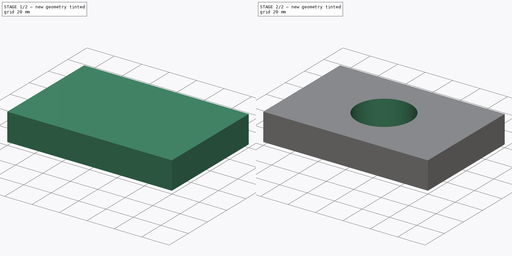
[diagram: build sequence overview — one tinted view per stage of 2, left to right]
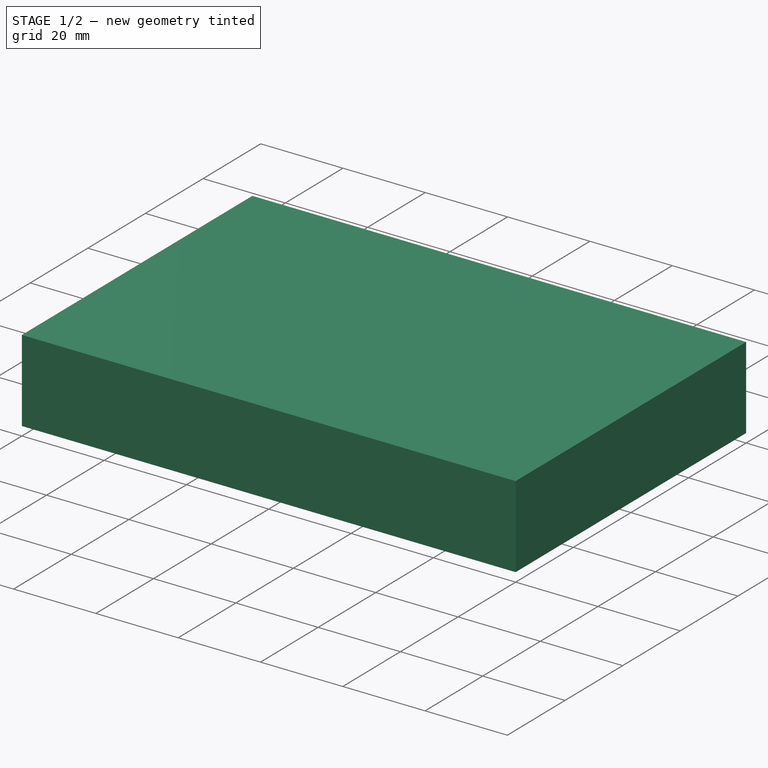
[diagram: stage 1 of 2 — iso view after this stage's code; geometry added in this stage tinted green]
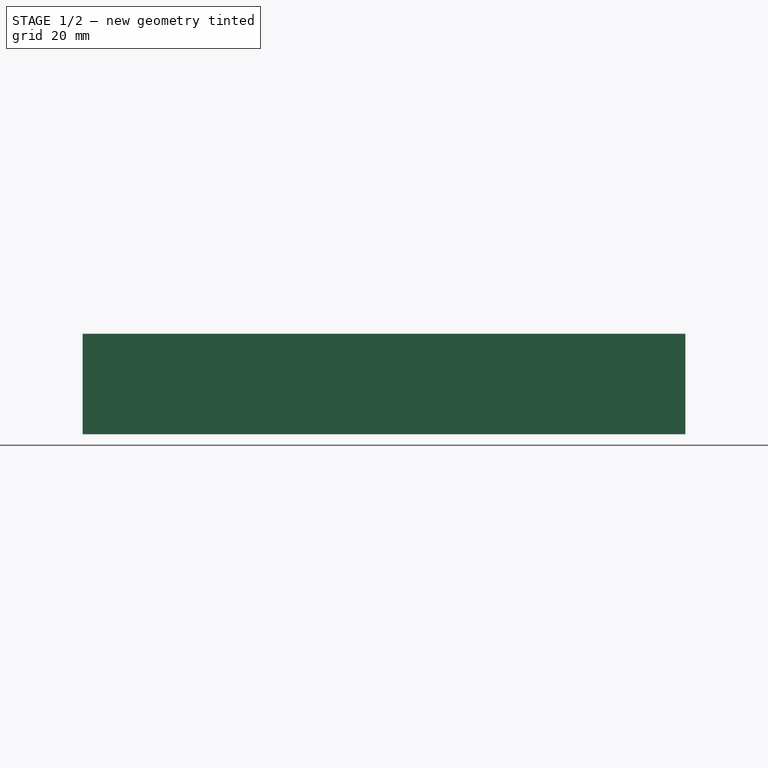
[diagram: stage 1 of 2 — front view after this stage's code; geometry added in this stage tinted green]
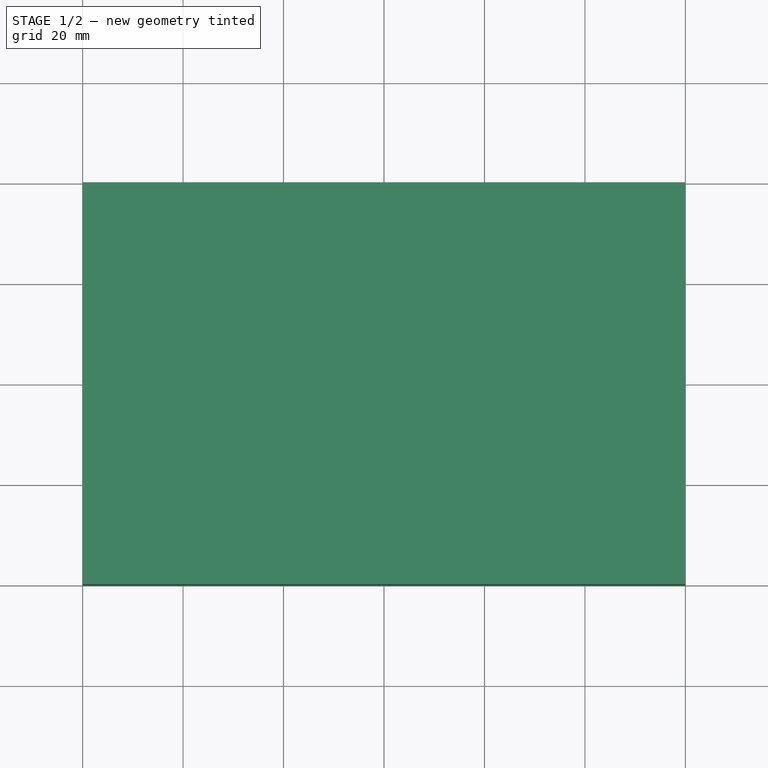
[diagram: stage 1 of 2 — top view after this stage's code; geometry added in this stage tinted green]
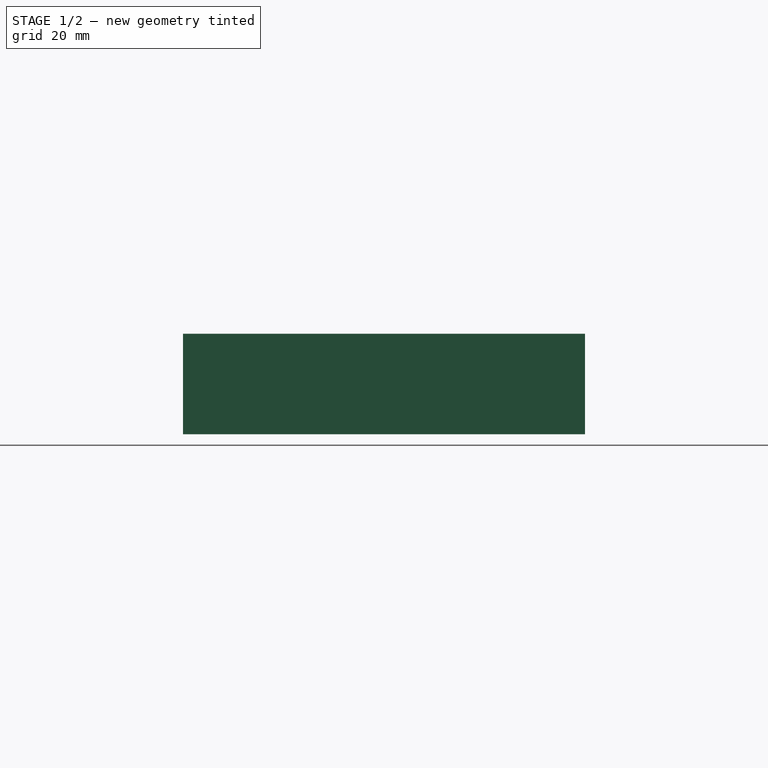
[diagram: stage 1 of 2 — right view after this stage's code; geometry added in this stage tinted green]
FCSTD DOCUMENT  (FreeCAD 0.18R16146 (Git))
Label: ex
License: All rights reserved
LicenseURL: http://en.wikipedia.org/wiki/All_rights_reserved
objects: Drawing::FeatureViewPart×7, Drawing::FeatureViewPython×4, Sketcher::SketchObject×2, PartDesign::Pad×1, PartDesign::Pocket×1, PartDesign::Body×1, Drawing::FeaturePage×1
note: 7 computed .brp shape members not serialized (recipe doc carries the construction recipe); baked Part::Feature solids carry a one-line shape summary decoded from their .brp

FEATURE [Sketcher::SketchObject] Sketch
  MapMode = 5
  Support = -> [XY_Plane]
  sketch-geometry (4):
    g0: LineSegment StartX=-60 StartY=40 StartZ=0 EndX=60 EndY=40 EndZ=0
    g1: LineSegment StartX=60 StartY=40 StartZ=0 EndX=60 EndY=-40 EndZ=0
    g2: LineSegment StartX=60 StartY=-40 StartZ=0 EndX=-60 EndY=-40 EndZ=0
    g3: LineSegment StartX=-60 StartY=-40 StartZ=0 EndX=-60 EndY=40 EndZ=0
  constraints (12):
    c: Coincident(g0,g1)
    c: Coincident(g1,g2)
    c: Coincident(g2,g3)
    c: Coincident(g3,g0)
    c: Horizontal(g0)
    c: Horizontal(g2)
    c: Vertical(g1)
    c: Vertical(g3)
    c: DistanceX(g0,g0) = 120
    c: DistanceY(g1,g1) = 80
    c: DistanceX(g0,g-1) = 60
    c: DistanceY(g-1,g0) = 40
FEATURE [PartDesign::Pad] Pad  label="사각형"
  Length = 20
  Length2 = 100
  Profile = -> Sketch
  Type = 0
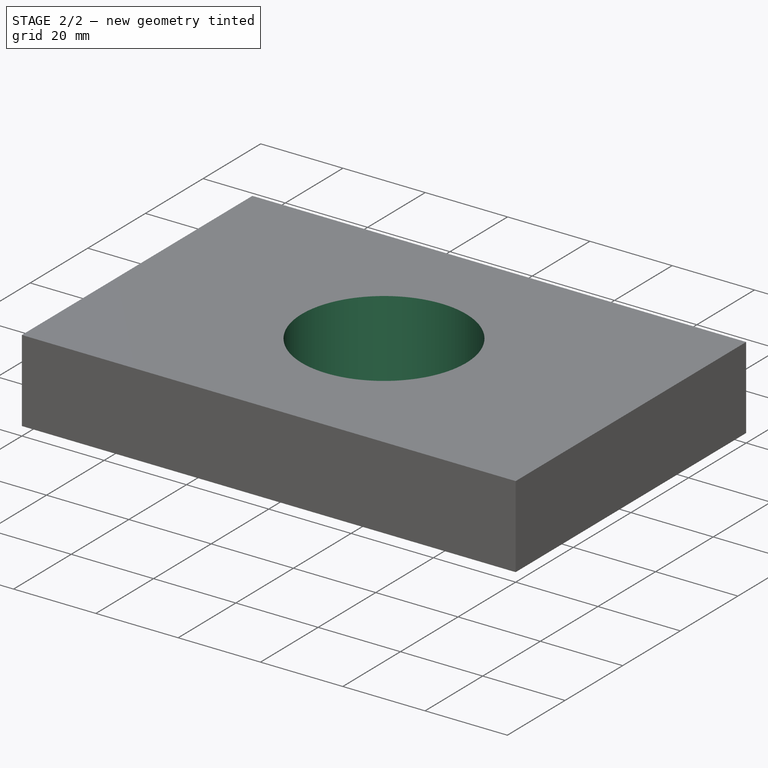
[diagram: stage 2 of 2 — iso view after this stage's code; geometry added in this stage tinted green]
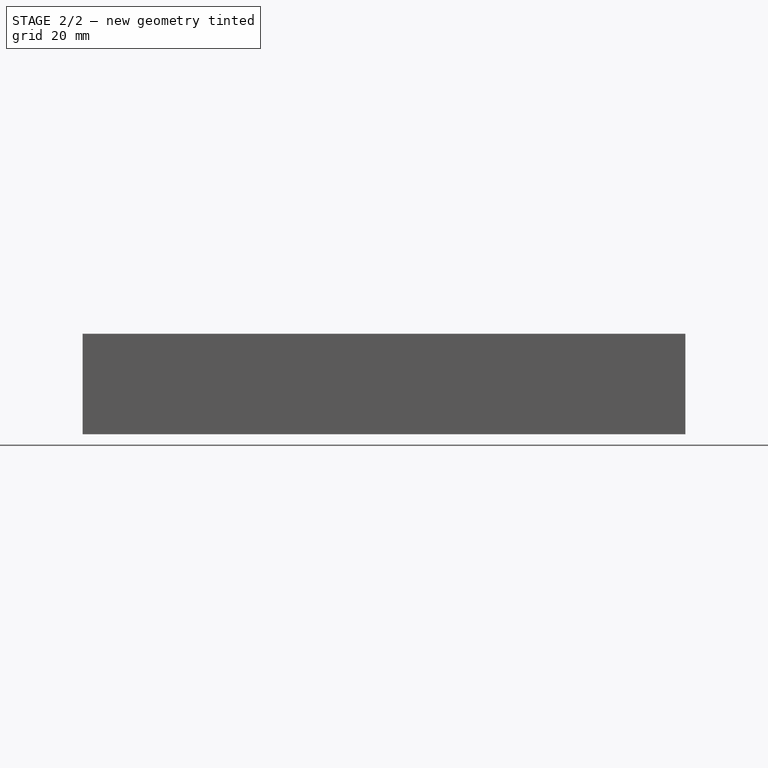
[diagram: stage 2 of 2 — front view after this stage's code; geometry added in this stage tinted green]
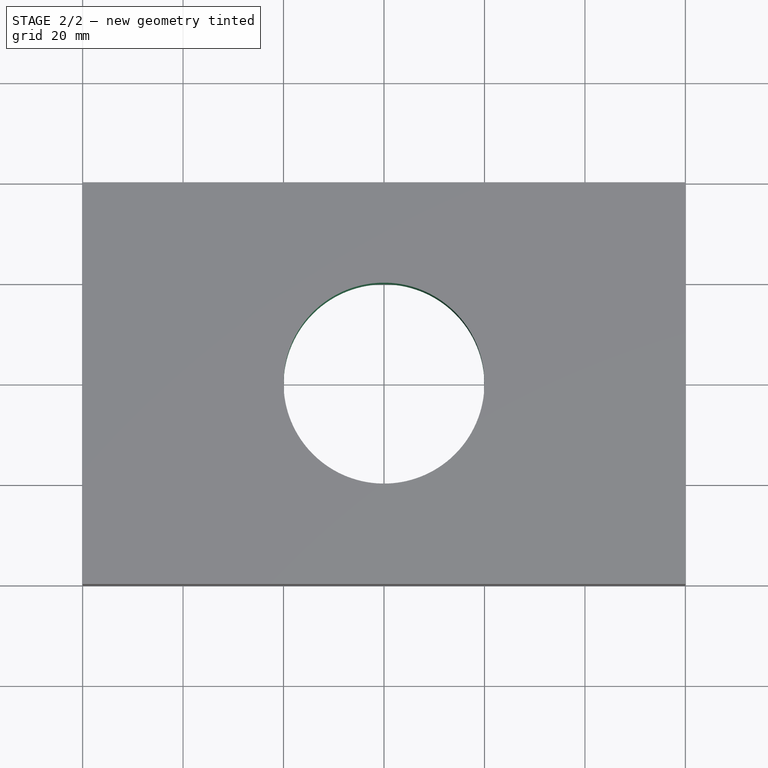
[diagram: stage 2 of 2 — top view after this stage's code; geometry added in this stage tinted green]
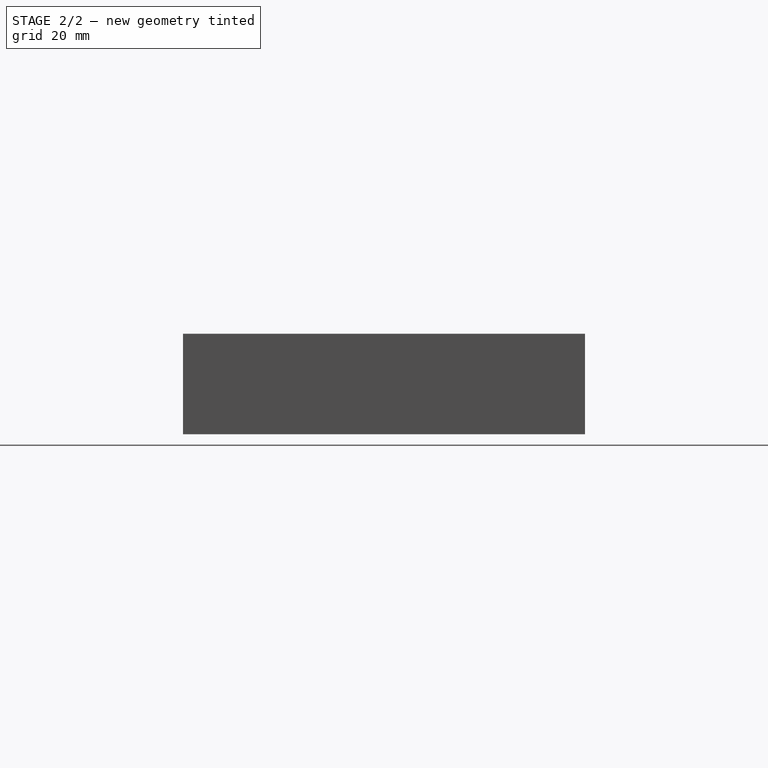
[diagram: stage 2 of 2 — right view after this stage's code; geometry added in this stage tinted green]
FEATURE [Sketcher::SketchObject] Sketch001
  MapMode = 5
  Placement = pos=(0,0,20) rot=(0,0,1;0rad)
  Support = -> [Pad]
  sketch-geometry (1):
    g0: Circle CenterX=0 CenterY=0 CenterZ=0 NormalX=0 NormalY=0 NormalZ=1 AngleXU=0 Radius=20
  constraints (2):
    c: Coincident(g0,g-1)
    c: Radius(g0) = 20
FEATURE [PartDesign::Pocket] Pocket  label="원"
  BaseFeature = -> Pad
  Length = 20
  Length2 = 100
  Profile = -> Sketch001
  Type = 0
FEATURE [PartDesign::Body] Body
  Group = -> [Sketch,Pad,Sketch001,Pocket]
  Origin = -> Origin
  Tip = -> Pocket
FEATURE [Drawing::FeatureViewPart] Ortho  label="Ortho_0_0"
  Direction = (1,0,0)
  HiddenWidth = 0.15
  LineWidth = 0.35
  Rotation = -90
  Scale = 0.75
  ShowHiddenLines = false
  ShowSmoothLines = false
  Source = -> Pocket
  Tolerance = 0.05
  ViewResult = <g id="Ortho_0_0"\n   transform="rotate(-90,210,202.75) translate(210,202.75) scale(0.75,0.75)"\n  >\n<g   fill="none"\n   stroke="rgb(0, 0, 0)"\n   stroke-linecap="butt"\n   stroke-linejoin="miter"\n   stroke-width="0.466667"\n   transform="scale(1,-1)"\n  >\n<path id= "1" d=" M 0 -40 L 20 -40 " />\n<path id= "2" d=" M 0 40 L 20 40 " />\n<path id= "3" d=" M 0 -40 L 0 40 " />\n<path id= "4" d=" M 20 -40 L 20 40 " />\n</g>\n</g>
  Visible = true
  X = 210
  Y = 202.75
FEATURE [Drawing::FeatureViewPart] Ortho006  label="Ortho_-1_1"
  Direction = (0.57735,-0.57735,0.57735)
  HiddenWidth = 0.15
  LineWidth = 0.35
  Rotation = 60
  Scale = 0.75
  ShowHiddenLines = false
  ShowSmoothLines = false
  Source = -> Pocket
  Tolerance = 0.05
  ViewResult = <g id="Ortho_-1_1"\n   transform="rotate(60,95,124.624) translate(95,124.624) scale(0.75,0.75)"\n  >\n<g   fill="none"\n   stroke="rgb(0, 0, 0)"\n   stroke-linecap="butt"\n   stroke-linejoin="miter"\n   stroke-width="0.466667"\n   transform="scale(1,-1)"\n  >\n<path id= "1" d=" M 42.4264 57.1548 L 28.2843 65.3197 " />\n<path id= "2" d=" M -56.5685 16.3299 L 28.2843 65.3197 " />\n<path id= "3" d=" M -42.4264 -57.1548 L -56.5685 -48.9898 " />\n<path id= "4" d=" M -56.5685 -48.9898 L -56.5685 16.3299 " />\n<path id= "5" d=" M 42.4264 -8.16497 L 28.2843 -5.32907e-15 " />\n<path id= "6" d=" M 42.4264 57.1548 L 42.4264 -8.16497 " />\n<path id= "7" d=" M 28.2843 65.3197 L 28.2843 0 " />\n<path id= "8" d=" M 42.4264 -8.16497 L -42.4264 -57.1548 " />\n<path d="M6.21725e-15 16.3299 A20 11.547 60 0 1 -14.1421 -8.16497" />\n<path id= "10" d=" M 28.2843 -5.32907e-15 L -56.5685 -48.9898 " />\n<path d="M1.77636e-15 16.3299 A20 11.547 60 0 1 -4.14214 25.4855" />\n<path d="M-4.14214 25.4855 A20 11.547 60 0 1 -24.1421 -9.15554" />\n<path d="M-24.1421 -9.15554 A20 11.547 60 0 1 1.77636e-15 16.3299" />\n</g>\n</g>
  Visible = true
  X = 95
  Y = 124.624
FEATURE [Drawing::FeatureViewPart] Ortho007  label="Ortho_1_1"
  Direction = (0.57735,0.57735,0.57735)
  HiddenWidth = 0.15
  LineWidth = 0.35
  Rotation = 120
  Scale = 0.75
  ShowHiddenLines = false
  ShowSmoothLines = false
  Source = -> Pocket
  Tolerance = 0.05
  ViewResult = <g id="Ortho_1_1"\n   transform="rotate(120,325,124.624) translate(325,124.624) scale(0.75,0.75)"\n  >\n<g   fill="none"\n   stroke="rgb(0, 0, 0)"\n   stroke-linecap="butt"\n   stroke-linejoin="miter"\n   stroke-width="0.466667"\n   transform="scale(1,-1)"\n  >\n<path id= "1" d=" M -42.4264 57.1548 L -56.5685 48.9898 " />\n<path id= "2" d=" M 42.4264 8.16497 L 28.2843 5.32907e-15 " />\n<path id= "3" d=" M -42.4264 57.1548 L 42.4264 8.16497 " />\n<path id= "4" d=" M -56.5685 48.9898 L 28.2843 -7.10543e-15 " />\n<path id= "5" d=" M -56.5685 -16.3299 L -56.5685 48.9898 " />\n<path id= "6" d=" M 42.4264 -57.1548 L 28.2843 -65.3197 " />\n<path id= "7" d=" M 42.4264 8.16497 L 42.4264 -57.1548 " />\n<path id= "8" d=" M 28.2843 5.32907e-15 L 28.2843 -65.3197 " />\n<path d="M-14.1421 8.16497 A20 11.547 120 0 1 -1.77636e-15 -16.3299" />\n<path id= "10" d=" M 28.2843 -65.3197 L -56.5685 -16.3299 " />\n<path d="M5.32907e-15 -16.3299 A20 11.547 120 0 1 -24.1421 9.15554" />\n<path d="M-24.1421 9.15554 A20 11.547 120 0 1 -4.14214 -25.4855" />\n<path d="M-4.14214 -25.4855 A20 11.547 120 0 1 5.32907e-15 -16.3299" />\n</g>\n</g>
  Visible = true
  X = 325
  Y = 124.624
FEATURE [Drawing::FeatureViewPart] Ortho008  label="Ortho_-1_0"
  Direction = (0,-1,0)
  HiddenWidth = 0.15
  LineWidth = 0.35
  Rotation = 90
  Scale = 0.75
  ShowHiddenLines = false
  ShowSmoothLines = false
  Source = -> Pocket
  Tolerance = 0.05
  ViewResult = <g id="Ortho_-1_0"\n   transform="rotate(90,95,202.75) translate(95,202.75) scale(0.75,0.75)"\n  >\n<g   fill="none"\n   stroke="rgb(0, 0, 0)"\n   stroke-linecap="butt"\n   stroke-linejoin="miter"\n   stroke-width="0.466667"\n   transform="scale(1,-1)"\n  >\n<path id= "1" d=" M 0 -60 L -20 -60 " />\n<path id= "2" d=" M 0 60 L -20 60 " />\n<path id= "3" d=" M 0 60 L 0 -60 " />\n<path id= "4" d=" M -20 60 L -20 -60 " />\n</g>\n</g>
  Visible = true
  X = 95
  Y = 202.75
FEATURE [Drawing::FeatureViewPart] Ortho009  label="Ortho_1_0"
  Direction = (0,1,0)
  HiddenWidth = 0.15
  LineWidth = 0.35
  Rotation = -90
  Scale = 0.75
  ShowHiddenLines = false
  ShowSmoothLines = false
  Source = -> Pocket
  Tolerance = 0.05
  ViewResult = <g id="Ortho_1_0"\n   transform="rotate(-90,325,202.75) translate(325,202.75) scale(0.75,0.75)"\n  >\n<g   fill="none"\n   stroke="rgb(0, 0, 0)"\n   stroke-linecap="butt"\n   stroke-linejoin="miter"\n   stroke-width="0.466667"\n   transform="scale(1,-1)"\n  >\n<path id= "1" d=" M 0 -60 L 20 -60 " />\n<path id= "2" d=" M 0 60 L 20 60 " />\n<path id= "3" d=" M 0 -60 L 0 60 " />\n<path id= "4" d=" M 20 -60 L 20 60 " />\n</g>\n</g>
  Visible = true
  X = 325
  Y = 202.75
FEATURE [Drawing::FeatureViewPart] Ortho010  label="Ortho_0_1"
  Direction = (0,0,1)
  HiddenWidth = 0.15
  LineWidth = 0.35
  Rotation = 90
  Scale = 0.75
  ShowHiddenLines = false
  ShowSmoothLines = false
  Source = -> Pocket
  Tolerance = 0.05
  ViewResult = <g id="Ortho_0_1"\n   transform="rotate(90,210,118.5) translate(210,118.5) scale(0.75,0.75)"\n  >\n<g   fill="none"\n   stroke="rgb(0, 0, 0)"\n   stroke-linecap="butt"\n   stroke-linejoin="miter"\n   stroke-width="0.466667"\n   transform="scale(1,-1)"\n  >\n<path id= "1" d=" M -60 40 L 60 40 " />\n<path id= "2" d=" M -60 -40 L -60 40 " />\n<path id= "3" d=" M 60 40 L 60 -40 " />\n<path id= "4" d=" M 60 -40 L -60 -40 " />\n<circle cx ="0" cy ="0" r ="20" /></g>\n</g>
  Visible = true
  X = 210
  Y = 118.5
FEATURE [Drawing::FeatureViewPart] Ortho011  label="Ortho_0_2"
  Direction = (-1,0,0)
  HiddenWidth = 0.15
  LineWidth = 0.35
  Rotation = -90
  Scale = 0.75
  ShowHiddenLines = false
  ShowSmoothLines = false
  Source = -> Pocket
  Tolerance = 0.05
  ViewResult = <g id="Ortho_0_2"\n   transform="rotate(-90,210,34.25) translate(210,34.25) scale(0.75,0.75)"\n  >\n<g   fill="none"\n   stroke="rgb(0, 0, 0)"\n   stroke-linecap="butt"\n   stroke-linejoin="miter"\n   stroke-width="0.466667"\n   transform="scale(1,-1)"\n  >\n<path id= "1" d=" M 0 -40 L -20 -40 " />\n<path id= "2" d=" M 0 40 L -20 40 " />\n<path id= "3" d=" M 0 40 L 0 -40 " />\n<path id= "4" d=" M -20 40 L -20 -40 " />\n</g>\n</g>
  Visible = true
  X = 210
  Y = 34.25
FEATURE [Drawing::FeatureViewPython] dim001  # drawing view (typed FeaturePython)
  Rotation = 0
  ViewResult = <g> \n  <line x1="178.000000" y1="34.250000" x2="153.428579" y2="34.250000" style="stroke:rgb(0,0,255);stroke-width:0.30" />\n<line x1="178.000000" y1="49.250000" x2="153.428579" y2="49.250000" style="stroke:rgb(0,0,255);stroke-width:0.30" />\n<line x1="154.428579" y1="34.250000" x2="154.428579" y2="49.250000" style="stroke:rgb(0,0,255);stroke-width:0.30" /> \n  <polygon points="154.428579,49.250000 155.428579,46.250000 154.428579,45.250000 153.428579,46.250000" style="fill:rgb(0,0,255);stroke:rgb(0,0,255);stroke-width:0" /><polygon points="154.428579,34.250000 153.428579,37.250000 154.428579,38.250000 155.428579,37.250000" style="fill:rgb(0,0,255);stroke:rgb(0,0,255);stroke-width:0" /> \n  <text x="152.428579" y="41.750000" font-family="Verdana" font-size="3.6" fill="rgb(255,0,0)" text-anchor="middle" transform="rotate(-90.000000 152.428579,41.750000)" >20</text> </g>
  Visible = true
  X = 0
  Y = 0
  arrowL1 = 3
  arrowL2 = 1
  arrowW = 2
  arrow_scheme = 0
  autoPlaceOffset = 2
  autoPlaceText = true
  click1_x = 154.429
  click1_y = 46.3286
  click2_x = 154.429
  click2_y = 46.3286
  comma_decimal_place = false
  dimension_line_overshoot = 1
  gap_datum_points = 2
  halfDimension_linear = false
  lineColor = rgb(0,0,255)
  strokeWidth = 0.3
  textFormat_linear = %(value)3.3f
  textRenderer_color = rgb(255,0,0)
  textRenderer_family = Verdana
  textRenderer_size = 3.6
  unit_custom_scale = 1
  unit_scheme = 0
FEATURE [Drawing::FeatureViewPython] dim002  # drawing view (typed FeaturePython)
  Rotation = 0
  ViewResult = <g> \n  <line x1="180.000000" y1="32.250000" x2="180.000000" y2="19.788463" style="stroke:rgb(0,0,255);stroke-width:0.30" />\n<line x1="240.000000" y1="32.250000" x2="240.000000" y2="19.788463" style="stroke:rgb(0,0,255);stroke-width:0.30" />\n<line x1="180.000000" y1="20.788463" x2="240.000000" y2="20.788463" style="stroke:rgb(0,0,255);stroke-width:0.30" /> \n  <polygon points="240.000000,20.788463 237.000000,19.788463 236.000000,20.788463 237.000000,21.788463" style="fill:rgb(0,0,255);stroke:rgb(0,0,255);stroke-width:0" /><polygon points="180.000000,20.788463 183.000000,21.788463 184.000000,20.788463 183.000000,19.788463" style="fill:rgb(0,0,255);stroke:rgb(0,0,255);stroke-width:0" /> \n  <text x="210.000000" y="18.788463" font-family="Verdana" font-size="3.6" fill="rgb(255,0,0)" text-anchor="middle" transform="rotate(0.000000 210.000000,18.788463)" >80</text> </g>
  Visible = true
  X = 0
  Y = 0
  arrowL1 = 3
  arrowL2 = 1
  arrowW = 2
  arrow_scheme = 0
  autoPlaceOffset = 2
  autoPlaceText = true
  click1_x = 242.334
  click1_y = 20.7885
  click2_x = 242.334
  click2_y = 20.7885
  comma_decimal_place = false
  dimension_line_overshoot = 1
  gap_datum_points = 2
  halfDimension_linear = false
  lineColor = rgb(0,0,255)
  strokeWidth = 0.3
  textFormat_linear = %(value)3.3f
  textRenderer_color = rgb(255,0,0)
  textRenderer_family = Verdana
  textRenderer_size = 3.6
  unit_custom_scale = 1
  unit_scheme = 0
FEATURE [Drawing::FeatureViewPython] rad001  # drawing view (typed FeaturePython)
  Rotation = 0
  ViewResult = <g>  <circle cx ="210.000000" cy ="118.500000" r="0.500000" stroke="none" fill="rgb(0,0,255)" /> \n<line x1="225.827049" y1="106.210895" x2="210.000000" y2="118.500000" style="stroke:rgb(0,0,255);stroke-width:0.30" />\n<polygon points="221.847833,109.300606 218.864974,110.350629 218.688411,111.753778 220.091559,111.930340" style="fill:rgb(0,0,255);stroke:rgb(0,0,255);stroke-width:0" />\n<line x1="225.827049" y1="106.210895" x2="238.201134" y2="106.210895" style="stroke:rgb(0,0,255);stroke-width:0.30" />\n<text x="232.014092" y="104.210895" font-family="Verdana" font-size="3.6" fill="rgb(255,0,0)" text-anchor="middle" transform="rotate(0.000000 232.014092,104.210895)" >R20</text> </g>
  Visible = true
  X = 0
  Y = 0
  arrowL1 = 3
  arrowL2 = 1
  arrowW = 2
  arrow_scheme = 0
  autoPlaceOffset = 2
  autoPlaceText = true
  centerPointDia = 1
  click1_x = 225.827
  click1_y = 106.211
  click2_x = 238.201
  click2_y = 97.2741
  click3_x = 238.201
  click3_y = 97.2741
  comma_decimal_place = false
  lineColor = rgb(0,0,255)
  strokeWidth = 0.3
  textFormat_radial = R%(value)3.3f
  textRenderer_color = rgb(255,0,0)
  textRenderer_family = Verdana
  textRenderer_size = 3.6
  unit_custom_scale = 1
  unit_scheme = 0
FEATURE [Drawing::FeatureViewPython] dim003  # drawing view (typed FeaturePython)
  Rotation = 0
  ViewResult = <g> <line x1="178.000000" y1="73.500000" x2="154.707235" y2="73.500000" style="stroke:rgb(0,0,255);stroke-width:0.30" />\n<line x1="177.999940" y1="163.500000" x2="154.707235" y2="163.500000" style="stroke:rgb(0,0,255);stroke-width:0.30" />\n<line x1="155.707235" y1="73.500000" x2="155.707235" y2="163.500000" style="stroke:rgb(0,0,255);stroke-width:0.30" />\n<polygon points="155.707235,73.500000 154.707235,76.500000 155.707235,77.500000 156.707235,76.500000" style="fill:rgb(0,0,255);stroke:rgb(0,0,255);stroke-width:0" />\n<polygon points="155.707235,163.500000 156.707235,160.500000 155.707235,159.500000 154.707235,160.500000" style="fill:rgb(0,0,255);stroke:rgb(0,0,255);stroke-width:0" />\n<text x="153.707235" y="118.500000" font-family="Verdana" font-size="3.6" fill="rgb(255,0,0)" text-anchor="middle" transform="rotate(-90.000000 153.707235,118.500000)" >120</text> </g> 
  Visible = true
  X = 0
  Y = 0
  arrowL1 = 3
  arrowL2 = 1
  arrowW = 2
  arrow_scheme = 0
  autoPlaceOffset = 2
  autoPlaceText = true
  click1_x = 155.707
  click1_y = 50.1838
  click2_x = 155.707
  click2_y = 50.1838
  comma_decimal_place = false
  dimension_line_overshoot = 1
  gap_datum_points = 2
  halfDimension_linear = false
  lineColor = rgb(0,0,255)
  strokeWidth = 0.3
  textFormat_linear = %(value)3.3f
  textRenderer_color = rgb(255,0,0)
  textRenderer_family = Verdana
  textRenderer_size = 3.6
  unit_custom_scale = 1
  unit_scheme = 0
FEATURE [Drawing::FeaturePage] Page
  EditableTexts = AUTHOR NAME | CREATION DATE | SUPERVISOR NAME | CHECK DATE | SCALE | WEIGHT | NUMBER | SHEET | 연습 | SUBTITLE
  Group = -> [Ortho,Ortho006,Ortho007,Ortho008,Ortho009,Ortho010,Ortho011,dim001,dim002,rad001,dim003]
  Template = <path>
note: 1 file-system path scrubbed to <path> (originals preserved in the JSON sidecar)
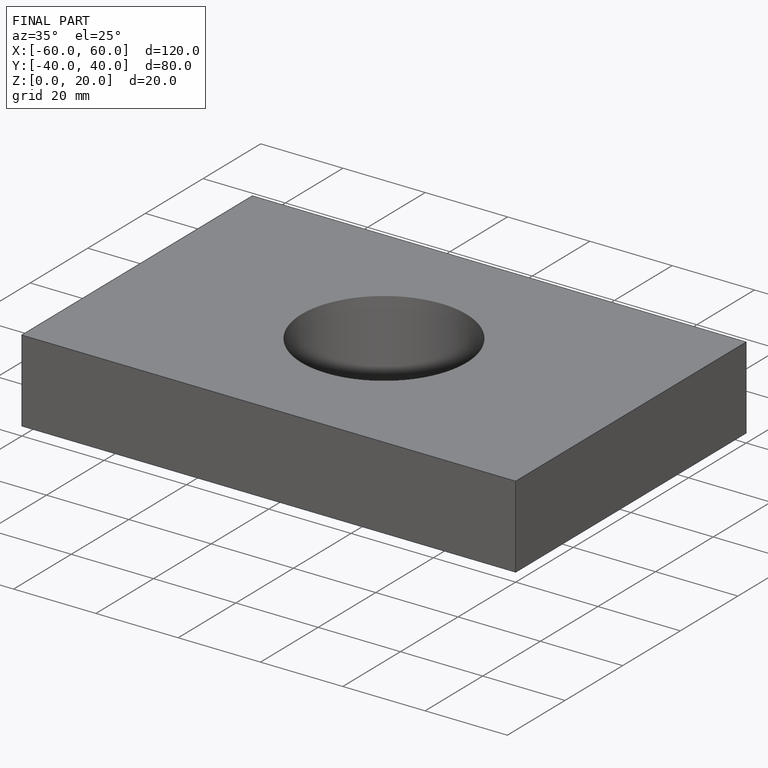
[diagram: finished part — iso view with bounding-box wireframe]
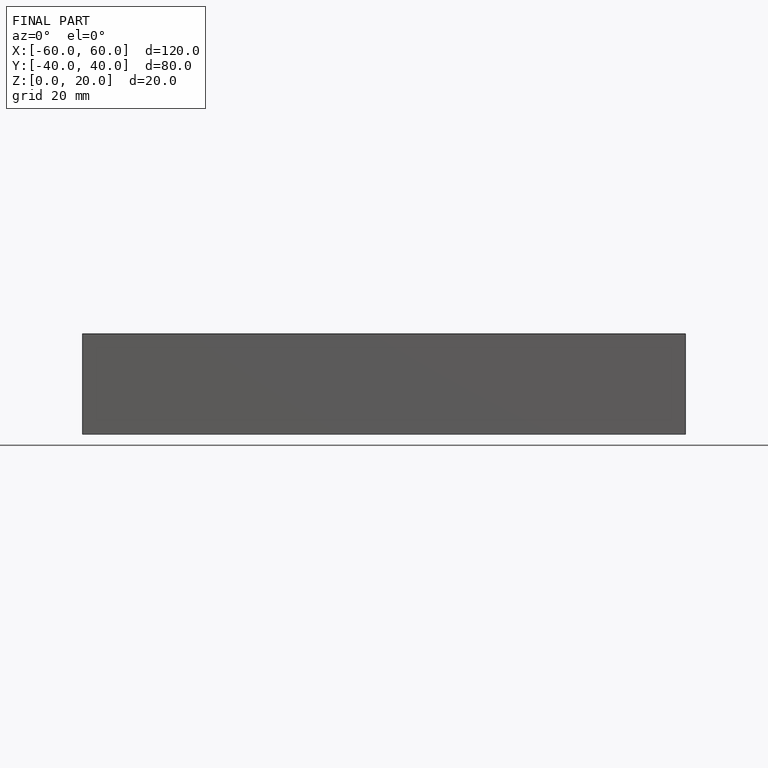
[diagram: finished part — front view with bounding-box wireframe]
